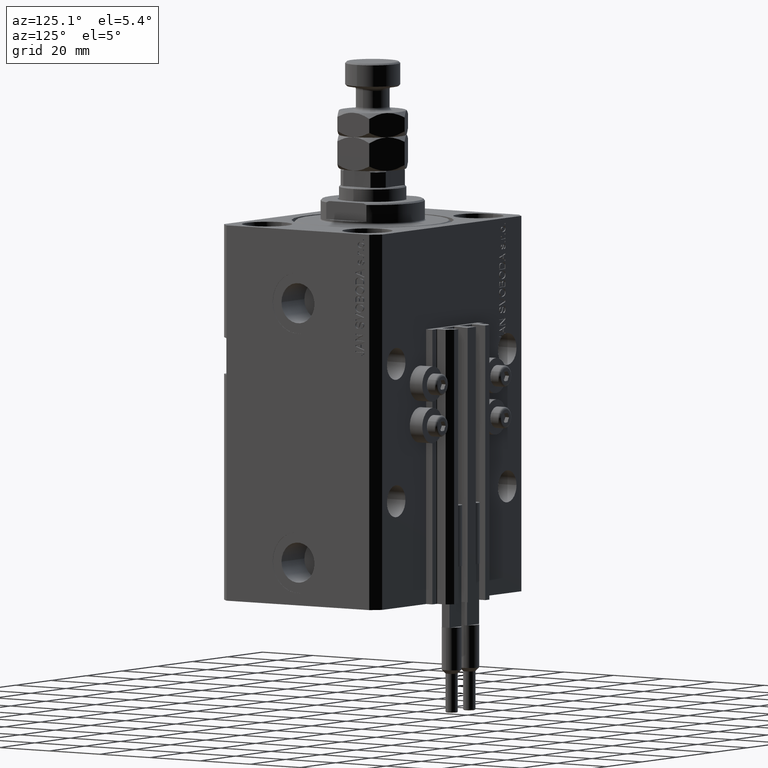
[diagram: clean part render]
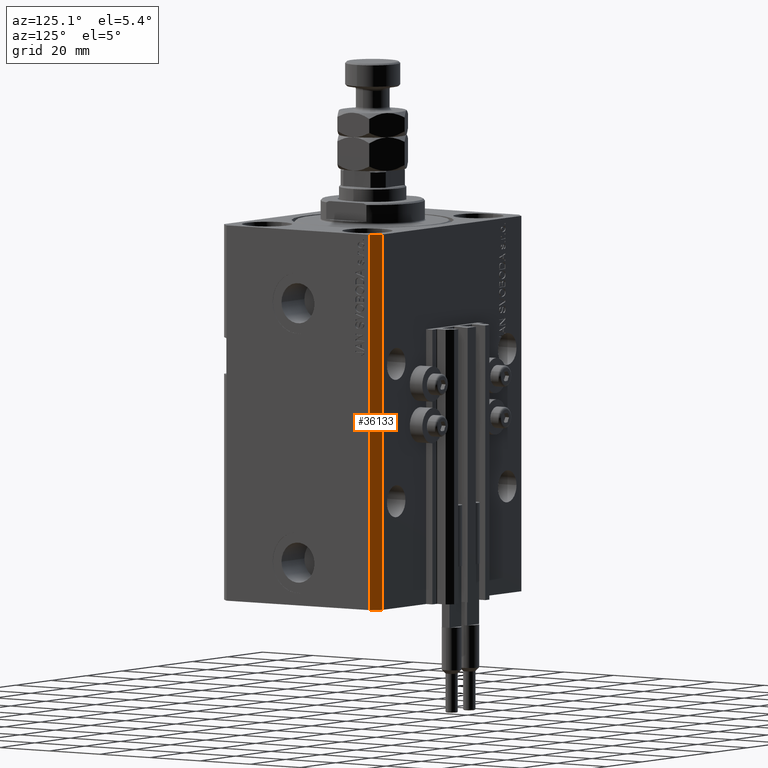
[diagram: same view with one face highlighted and labeled with its STEP entity id]
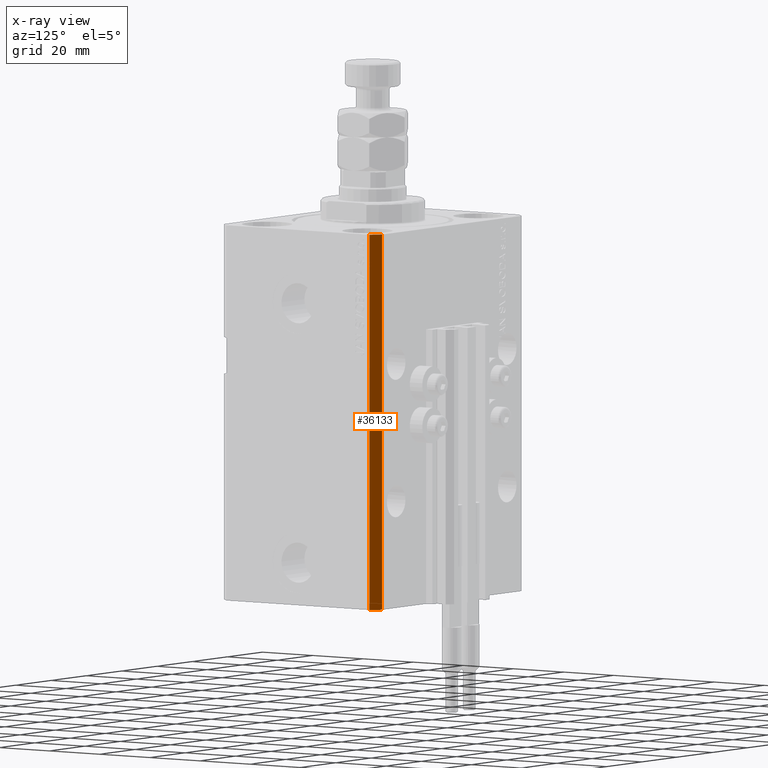
[diagram: x-ray of the same camera — body ghosted, the highlighted face saturated]
A machine part, auxiliary view. The second image highlights one B-rep face of the part: STEP entity #36133.
The next image is the same camera in x-ray: the body ghosted, the highlighted face saturated — about 0% of this face is hidden behind the body in this view.
In plain terms, the highlighted planar face has unit normal (0.7071, 0.7071, 0).
Its self-contained STEP definition (entity closure, byte-faithful):
#146 = CARTESIAN_POINT ( 'NONE',  ( 42.50000000000051870, 28.49999999999995381, -123.0000000000000000 ) ) ;
#2175 = CARTESIAN_POINT ( 'NONE',  ( 42.50000000000051870, 28.49999999999995381, -123.0000000000000000 ) ) ;
#3771 = ORIENTED_EDGE ( 'NONE', *, *, #16012, .T. ) ;
#6009 = CARTESIAN_POINT ( 'NONE',  ( 39.50000000000056843, 31.50000000000000000, 0.000000000000000000 ) ) ;
#6068 = VERTEX_POINT ( 'NONE', #2175 ) ;
#7543 = VERTEX_POINT ( 'NONE', #25948 ) ;
#7570 = DIRECTION ( 'NONE',  ( 0.000000000000000000, 0.000000000000000000, 1.000000000000000000 ) ) ;
#11470 = CARTESIAN_POINT ( 'NONE',  ( 39.50000000000056843, 31.50000000000000000, -123.0000000000000000 ) ) ;
#13838 = AXIS2_PLACEMENT_3D ( 'NONE', #29794, #33157, #45573 ) ;
#14281 = CARTESIAN_POINT ( 'NONE',  ( 42.50000000000051870, 28.49999999999995381, -123.0000000000000000 ) ) ;
#15450 = VERTEX_POINT ( 'NONE', #42902 ) ;
#15906 = EDGE_CURVE ( 'NONE', #15450, #32348, #33484, .T. ) ;
#16012 = EDGE_CURVE ( 'NONE', #7543, #32348, #46908, .T. ) ;
#18158 = PLANE ( 'NONE',  #13838 ) ;
#22157 = ORIENTED_EDGE ( 'NONE', *, *, #42850, .F. ) ;
#22555 = LINE ( 'NONE', #14281, #46793 ) ;
#25948 = CARTESIAN_POINT ( 'NONE',  ( 39.50000000000056843, 31.50000000000000000, -123.0000000000000000 ) ) ;
#26238 = DIRECTION ( 'NONE',  ( -0.7071067811865356934, 0.7071067811865594521, 0.000000000000000000 ) ) ;
#27674 = EDGE_CURVE ( 'NONE', #6068, #7543, #38968, .T. ) ;
#29353 = ORIENTED_EDGE ( 'NONE', *, *, #15906, .F. ) ;
#29794 = CARTESIAN_POINT ( 'NONE',  ( 42.50000000000051870, 28.49999999999995381, -123.0000000000000000 ) ) ;
#31073 = ORIENTED_EDGE ( 'NONE', *, *, #27674, .T. ) ;
#32348 = VERTEX_POINT ( 'NONE', #6009 ) ;
#33157 = DIRECTION ( 'NONE',  ( 0.7071067811865594521, 0.7071067811865355823, -0.000000000000000000 ) ) ;
#33484 = LINE ( 'NONE', #49764, #40435 ) ;
#35788 = VECTOR ( 'NONE', #39727, 1000.000000000000114 ) ;
#36133 = ADVANCED_FACE ( 'NONE', ( #44809 ), #18158, .T. ) ;
#38968 = LINE ( 'NONE', #146, #35788 ) ;
#39727 = DIRECTION ( 'NONE',  ( -0.7071067811865356934, 0.7071067811865594521, 0.000000000000000000 ) ) ;
#40435 = VECTOR ( 'NONE', #26238, 1000.000000000000114 ) ;
#42103 = VECTOR ( 'NONE', #7570, 1000.000000000000000 ) ;
#42711 = DIRECTION ( 'NONE',  ( 0.000000000000000000, 0.000000000000000000, 1.000000000000000000 ) ) ;
#42850 = EDGE_CURVE ( 'NONE', #6068, #15450, #22555, .T. ) ;
#42902 = CARTESIAN_POINT ( 'NONE',  ( 42.50000000000051870, 28.49999999999995381, 0.000000000000000000 ) ) ;
#43329 = EDGE_LOOP ( 'NONE', ( #29353, #22157, #31073, #3771 ) ) ;
#44809 = FACE_OUTER_BOUND ( 'NONE', #43329, .T. ) ;
#45573 = DIRECTION ( 'NONE',  ( -0.7071067811865355823, 0.7071067811865594521, 0.000000000000000000 ) ) ;
#46793 = VECTOR ( 'NONE', #42711, 1000.000000000000000 ) ;
#46908 = LINE ( 'NONE', #11470, #42103 ) ;
#49764 = CARTESIAN_POINT ( 'NONE',  ( 42.50000000000051870, 28.49999999999995381, 0.000000000000000000 ) ) ;